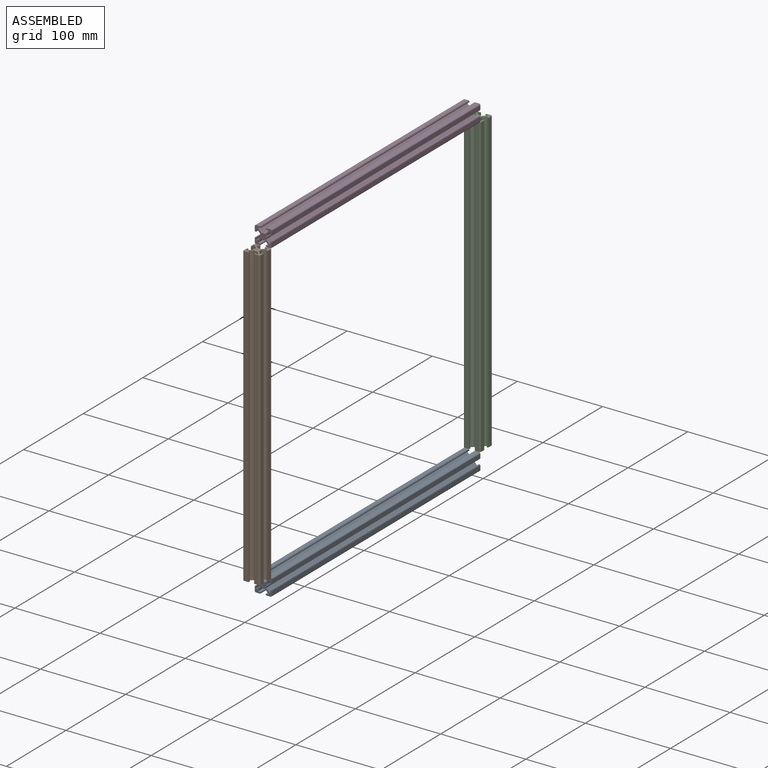
[diagram: assembled view]
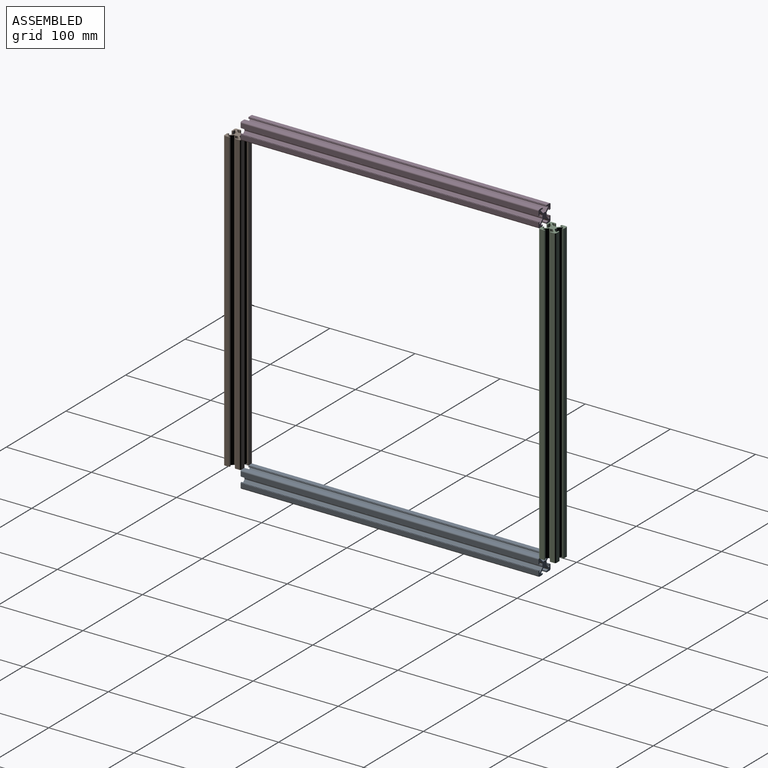
[diagram: assembled view, second angle]
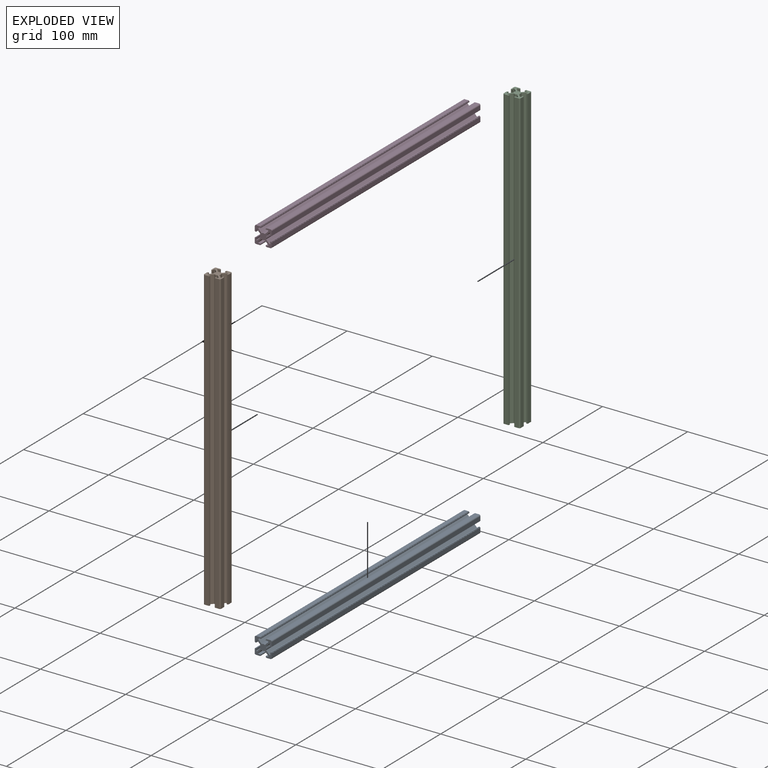
[diagram: exploded view]
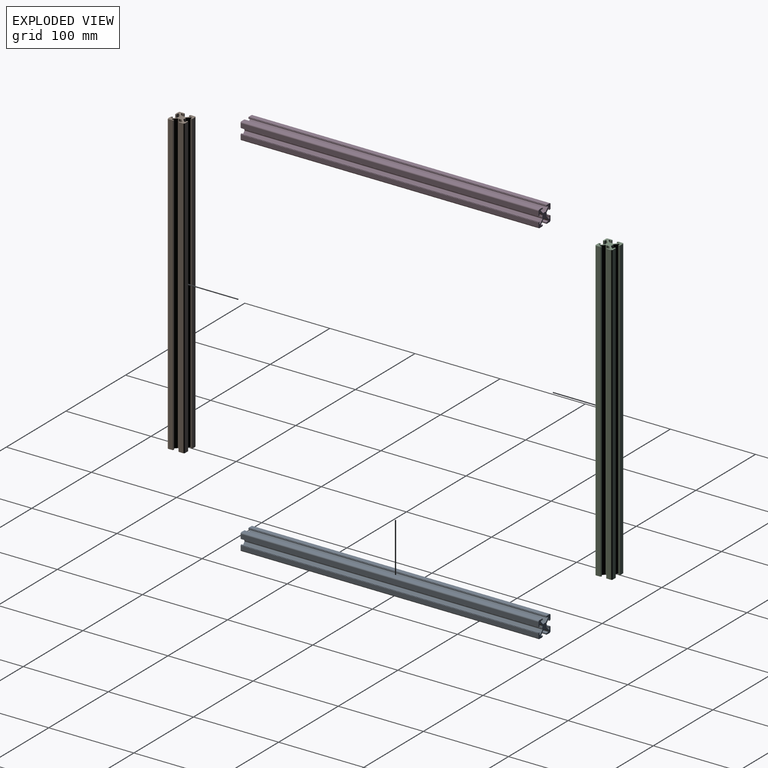
[diagram: exploded view, second angle]
ASSEMBLY  parts=4 mates=12
PART A: 86 faces, bbox 20x350x20 mm
  f0: cylinder r=1.5mm len=350mm, axis (0,1,0), area 824.7mm2, adj f1,f83,f84,f85
  f1: plane 350x5mm, normal (0,0,-1), area 1750mm2, adj f0,f2,f84,f85
  f2: plane 350x0.5mm, normal (1,0,0), area 175mm2, adj f1,f3,f84,f85
  f3: plane 350x0.5mm, normal (0,0,-1), area 175mm2, adj f2,f4,f84,f85
  f4: plane 350x1.2mm, normal (1,0,0), area 420mm2, adj f3,f5,f84,f85
  f5: plane 350x2.3mm, normal (0,0,1), area 804.8mm2, adj f4,f6,f84,f85
  f6: cylinder r=0.7mm len=350mm, axis (0,1,0), area 577.3mm2, adj f5,f7,f84,f85
  f7: plane 350x3.62mm, normal (0.71,0,-0.71), area 1791.3mm2, adj f6,f8,f84,f85
  f8: cylinder r=0.5mm len=350mm, axis (0,1,0), area 215mm2, adj f7,f9,f84,f85
  f9: cylinder r=3.75mm len=350mm, axis (0,1,0), area 476.4mm2, adj f8,f10,f84,f85
  f10: plane 350x0.3mm, normal (0.69,0,-0.72), area 145.5mm2, adj f9,f11,f84,f85
  f11: plane 350x0.3mm, normal (-0.69,0,-0.72), area 145.5mm2, adj f10,f12,f84,f85
  f12: cylinder r=3.75mm len=350mm, axis (0,1,0), area 476.4mm2, adj f11,f13,f84,f85
  f13: cylinder r=0.5mm len=350mm, axis (0,1,0), area 215mm2, adj f12,f14,f84,f85
  f14: plane 350x3.62mm, normal (-0.71,0,-0.71), area 1791.3mm2, adj f13,f15,f84,f85
  f15: cylinder r=0.7mm len=350mm, axis (0,1,0), area 577.3mm2, adj f14,f16,f84,f85
  f16: plane 350x2.3mm, normal (0,0,1), area 804.8mm2, adj f15,f17,f84,f85
  f17: plane 350x1.2mm, normal (-1,0,0), area 420mm2, adj f16,f18,f84,f85
  f18: plane 350x0.5mm, normal (0,0,-1), area 175mm2, adj f17,f19,f84,f85
  f19: plane 350x0.5mm, normal (-1,0,0), area 175mm2, adj f18,f20,f84,f85
  f20: plane 350x5mm, normal (0,0,-1), area 1750mm2, adj f19,f21,f84,f85
  f21: cylinder r=1.5mm len=350mm, axis (0,1,0), area 824.7mm2, adj f20,f22,f84,f85
  f22: plane 350x5mm, normal (1,0,0), area 1750mm2, adj f21,f23,f84,f85
  f23: plane 350x0.5mm, normal (0,0,1), area 175mm2, adj f22,f24,f84,f85
  f24: plane 350x0.5mm, normal (1,0,0), area 175mm2, adj f23,f25,f84,f85
  f25: plane 350x1.2mm, normal (0,0,1), area 420mm2, adj f24,f26,f84,f85
  f26: plane 350x2.3mm, normal (-1,0,0), area 804.8mm2, adj f25,f27,f84,f85
  f27: cylinder r=0.7mm len=350mm, axis (0,1,0), area 577.3mm2, adj f26,f28,f84,f85
  f28: plane 350x3.62mm, normal (0.71,0,0.71), area 1791.3mm2, adj f27,f29,f84,f85
  f29: cylinder r=0.5mm len=350mm, axis (0,1,0), area 215mm2, adj f28,f30,f84,f85
  f30: cylinder r=3.75mm len=350mm, axis (0,1,0), area 476.4mm2, adj f29,f31,f84,f85
  f31: plane 350x0.3mm, normal (0.72,0,0.69), area 145.5mm2, adj f30,f32,f84,f85
  f32: plane 350x0.3mm, normal (0.72,0,-0.69), area 145.5mm2, adj f31,f33,f84,f85
  f33: cylinder r=3.75mm len=350mm, axis (0,1,0), area 476.4mm2, adj f32,f34,f84,f85
  f34: cylinder r=0.5mm len=350mm, axis (0,1,0), area 215mm2, adj f33,f35,f84,f85
  f35: plane 350x3.62mm, normal (0.71,0,-0.71), area 1791.3mm2, adj f34,f36,f84,f85
  f36: cylinder r=0.7mm len=350mm, axis (0,1,0), area 577.3mm2, adj f35,f37,f84,f85
  f37: plane 350x2.3mm, normal (-1,0,0), area 804.8mm2, adj f36,f38,f84,f85
  f38: plane 350x1.2mm, normal (0,0,-1), area 420mm2, adj f37,f39,f84,f85
  f39: plane 350x0.5mm, normal (1,0,0), area 175mm2, adj f38,f40,f84,f85
  f40: plane 350x0.5mm, normal (0,0,-1), area 175mm2, adj f39,f41,f84,f85
  f41: plane 350x5mm, normal (1,0,0), area 1750mm2, adj f40,f42,f84,f85
  f42: cylinder r=1.5mm len=350mm, axis (0,1,0), area 824.7mm2, adj f41,f43,f84,f85
  f43: plane 350x5mm, normal (0,0,1), area 1750mm2, adj f42,f44,f84,f85
  f44: plane 350x0.5mm, normal (-1,0,0), area 175mm2, adj f43,f45,f84,f85
  f45: plane 350x0.5mm, normal (0,0,1), area 175mm2, adj f44,f46,f84,f85
  f46: plane 350x1.2mm, normal (-1,0,0), area 420mm2, adj f45,f47,f84,f85
  f47: plane 350x2.3mm, normal (0,0,-1), area 804.8mm2, adj f46,f48,f84,f85
  f48: cylinder r=0.7mm len=350mm, axis (0,1,0), area 577.3mm2, adj f47,f49,f84,f85
  f49: plane 350x3.62mm, normal (-0.71,0,0.71), area 1791.3mm2, adj f48,f50,f84,f85
  f50: cylinder r=0.5mm len=350mm, axis (0,1,0), area 215mm2, adj f49,f51,f84,f85
  f51: cylinder r=3.75mm len=350mm, axis (0,1,0), area 476.4mm2, adj f50,f52,f84,f85
  f52: plane 350x0.3mm, normal (-0.69,0,0.72), area 145.5mm2, adj f51,f53,f84,f85
  f53: plane 350x0.3mm, normal (0.69,0,0.72), area 145.5mm2, adj f52,f54,f84,f85
  f54: cylinder r=3.75mm len=350mm, axis (0,1,0), area 476.4mm2, adj f53,f55,f84,f85
  f55: cylinder r=0.5mm len=350mm, axis (0,1,0), area 215mm2, adj f54,f56,f84,f85
  f56: plane 350x3.62mm, normal (0.71,0,0.71), area 1791.3mm2, adj f55,f57,f84,f85
  f57: cylinder r=0.7mm len=350mm, axis (0,1,0), area 577.3mm2, adj f56,f58,f84,f85
  f58: plane 350x2.3mm, normal (0,0,-1), area 804.8mm2, adj f57,f59,f84,f85
  f59: plane 350x1.2mm, normal (1,0,0), area 420mm2, adj f58,f60,f84,f85
  f60: plane 350x0.5mm, normal (0,0,1), area 175mm2, adj f59,f61,f84,f85
  f61: plane 350x0.5mm, normal (1,0,0), area 175mm2, adj f60,f62,f84,f85
  f62: plane 350x5mm, normal (0,0,1), area 1750mm2, adj f61,f63,f84,f85
  f63: cylinder r=1.5mm len=350mm, axis (0,1,0), area 824.7mm2, adj f62,f64,f84,f85
  f64: plane 350x5mm, normal (-1,0,0), area 1750mm2, adj f63,f65,f84,f85
  f65: plane 350x0.5mm, normal (0,0,-1), area 175mm2, adj f64,f66,f84,f85
  f66: plane 350x0.5mm, normal (-1,0,0), area 175mm2, adj f65,f67,f84,f85
  f67: plane 350x1.2mm, normal (0,0,-1), area 420mm2, adj f66,f68,f84,f85
  f68: plane 350x2.3mm, normal (1,0,0), area 804.8mm2, adj f67,f69,f84,f85
  f69: cylinder r=0.7mm len=350mm, axis (0,1,0), area 577.3mm2, adj f68,f70,f84,f85
  f70: plane 350x3.62mm, normal (-0.71,0,-0.71), area 1791.3mm2, adj f69,f71,f84,f85
  f71: cylinder r=0.5mm len=350mm, axis (0,1,0), area 215mm2, adj f70,f72,f84,f85
  f72: cylinder r=3.75mm len=350mm, axis (0,1,0), area 476.4mm2, adj f71,f73,f84,f85
  f73: plane 350x0.3mm, normal (-0.72,0,-0.69), area 145.5mm2, adj f72,f74,f84,f85
  f74: plane 350x0.3mm, normal (-0.72,0,0.69), area 145.5mm2, adj f73,f75,f84,f85
  f75: cylinder r=3.75mm len=350mm, axis (0,1,0), area 476.4mm2, adj f74,f76,f84,f85
  f76: cylinder r=0.5mm len=350mm, axis (0,1,0), area 215mm2, adj f75,f77,f84,f85
  f77: plane 350x3.62mm, normal (-0.71,0,0.71), area 1791.3mm2, adj f76,f78,f84,f85
  f78: cylinder r=0.7mm len=350mm, axis (0,1,0), area 577.3mm2, adj f77,f79,f84,f85
  f79: plane 350x2.3mm, normal (1,0,0), area 804.8mm2, adj f78,f80,f84,f85
  f80: plane 350x1.2mm, normal (0,0,1), area 420mm2, adj f79,f81,f84,f85
  f81: plane 350x0.5mm, normal (-1,0,0), area 175mm2, adj f80,f82,f84,f85
  f82: plane 350x0.5mm, normal (0,0,1), area 175mm2, adj f81,f83,f84,f85
  f83: plane 350x5mm, normal (-1,0,0), area 1750mm2, adj f0,f82,f84,f85
  f84: plane 20x20mm, normal (0,-1,0), area 184.6mm2, adj f0,f1,f2,f3,f4,f5,f6,f7
  f85: plane 20x20mm, normal (0,1,0), area 184.6mm2, adj f0,f1,f2,f3,f4,f5,f6,f7
PART B: same geometry as A
PART C: same geometry as A
PART D: same geometry as A
PLACE A t=(69.85,-18.84,102.94)mm
PLACE B rot(axis=(1,0,0),90deg) t=(69.85,-478.84,562.94)mm
PLACE C rot(axis=(-1,0,0),90deg) t=(69.85,-108.84,12.94)mm
PLACE D rot(axis=(-0.71,0,0.71),180deg) t=(69.85,-568.84,472.94)mm
MATE planar D.f9 <-> B.f1  axis (0,-1,0) through (69.85,-468.84,472.94)mm
MATE planar A.f85 <-> C.f20  axis (0,1,0) through (66.46,-118.84,101.33)mm
MATE planar C.f20 <-> D.f84  axis (0,-1,0) through (75.85,-118.84,287.94)mm
MATE planar D.f20 <-> B.f41  axis (1,0,0) through (79.85,-293.84,466.94)mm
MATE planar D.f20 <-> C.f22  axis (1,0,0) through (79.85,-293.84,466.94)mm
MATE planar A.f41 <-> B.f22  axis (1,0,0) through (79.85,-293.84,108.94)mm
MATE planar C.f22 <-> A.f22  axis (1,0,0) through (79.85,-117.34,112.94)mm
MATE planar B.f22 <-> D.f20  axis (1,0,0) through (79.85,-472.84,462.94)mm
MATE planar A.f84 <-> B.f20  axis (0,-1,0) through (78.35,-468.84,92.94)mm
MATE planar B.f84 <-> A.f43  axis (0,0,-1) through (71.46,-475.46,112.94)mm
MATE planar C.f9 <-> A.f62  axis (0,0,-1) through (69.85,-108.84,112.94)mm
MATE planar D.f41 <-> B.f85  axis (0,0,-1) through (63.85,-293.84,462.94)mm
